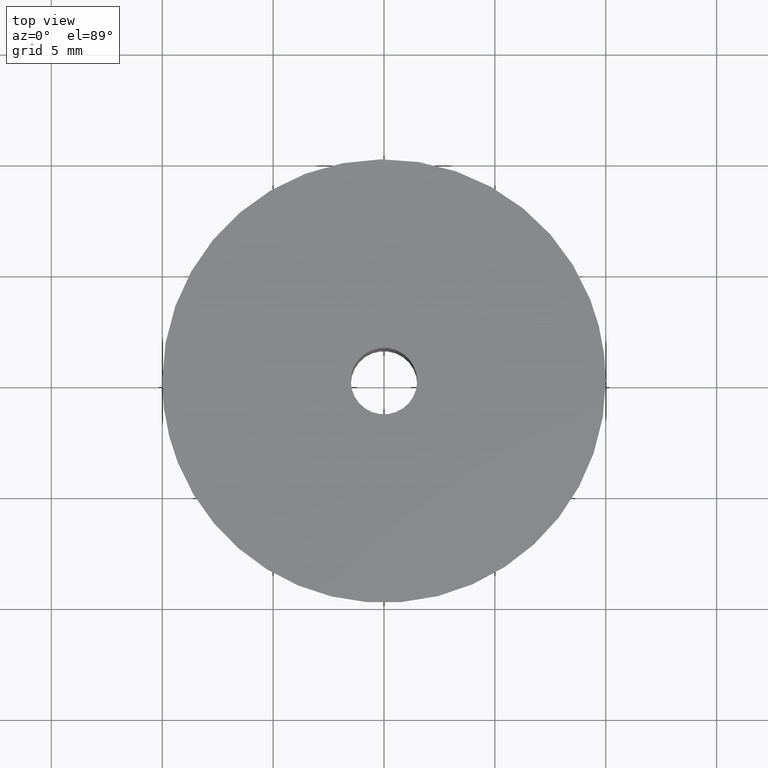
[diagram: clean part render]
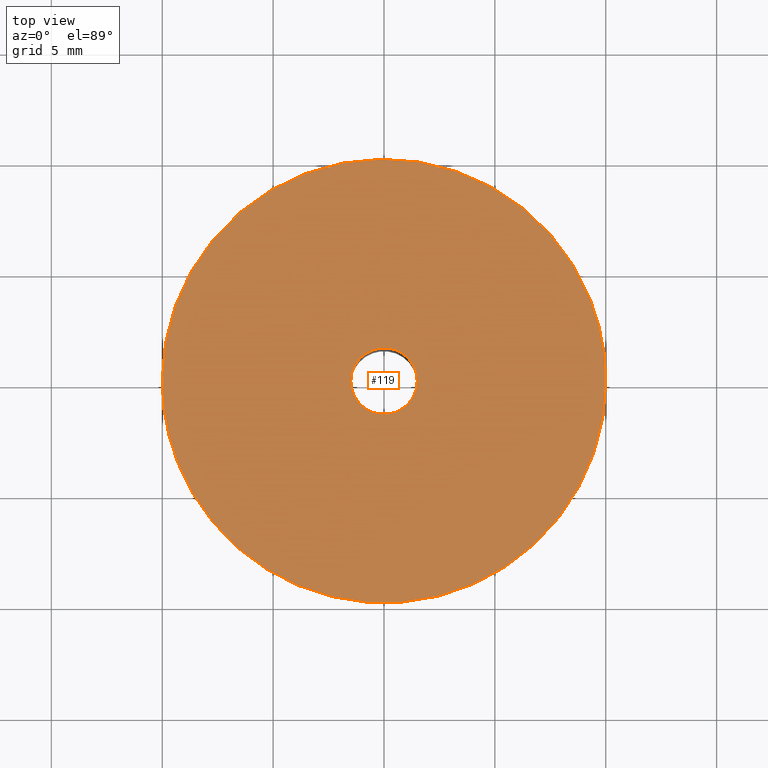
[diagram: same view with one face highlighted and labeled with its STEP entity id]
A machine part, top view. The second image highlights one B-rep face of the part: STEP entity #119.
In plain terms, the highlighted planar face has unit normal (0, 0, -1).
Its self-contained STEP definition (entity closure, byte-faithful):
#119=ADVANCED_FACE('',(#209,#210),#208,.F.);
#208=PLANE('',#413);
#209=FACE_OUTER_BOUND('',#414,.T.);
#210=FACE_BOUND('',#415,.T.);
#410=CARTESIAN_POINT('',(1.20000000000E+001,-1.26037041704E+001,1.70000000000E+001));
#411=DIRECTION('',(0.00000000000E+000,0.00000000000E+000,-1.00000000000E+000));
#412=DIRECTION('',(-1.00000000000E+000,0.00000000000E+000,0.00000000000E+000));
#413=AXIS2_PLACEMENT_3D('',#410,#411,#412);
#414=EDGE_LOOP('',(#586,#587,#588,#589,#590));
#415=EDGE_LOOP('',(#591,#592,#593));
#586=ORIENTED_EDGE('',*,*,#706,.F.);
#587=ORIENTED_EDGE('',*,*,#707,.F.);
#588=ORIENTED_EDGE('',*,*,#708,.F.);
#589=ORIENTED_EDGE('',*,*,#709,.F.);
#590=ORIENTED_EDGE('',*,*,#710,.F.);
#591=ORIENTED_EDGE('',*,*,#711,.T.);
#592=ORIENTED_EDGE('',*,*,#712,.T.);
#593=ORIENTED_EDGE('',*,*,#713,.T.);
#706=EDGE_CURVE('',#902,#903,#904,.T.);
#707=EDGE_CURVE('',#910,#902,#911,.T.);
#708=EDGE_CURVE('',#917,#910,#918,.T.);
#709=EDGE_CURVE('',#924,#917,#925,.T.);
#710=EDGE_CURVE('',#903,#924,#931,.T.);
#711=EDGE_CURVE('',#937,#938,#939,.T.);
#712=EDGE_CURVE('',#938,#945,#946,.T.);
#713=EDGE_CURVE('',#945,#937,#952,.T.);
#902=VERTEX_POINT('',#1310);
#903=VERTEX_POINT('',#1311);
#904=CIRCLE('',#1315,9.99999963700E+000);
#910=VERTEX_POINT('',#1316);
#911=CIRCLE('',#1320,9.99999937607E+000);
#917=VERTEX_POINT('',#1321);
#918=CIRCLE('',#1325,9.99999971291E+000);
#924=VERTEX_POINT('',#1326);
#925=CIRCLE('',#1330,1.00000000000E+001);
#931=CIRCLE('',#1334,1.00000000000E+001);
#937=VERTEX_POINT('',#1335);
#938=VERTEX_POINT('',#1336);
#939=CIRCLE('',#1340,1.50000000000E+000);
#945=VERTEX_POINT('',#1341);
#946=CIRCLE('',#1345,1.50000000000E+000);
#952=CIRCLE('',#1349,1.50000000000E+000);
#1310=CARTESIAN_POINT('',(-9.29864516177E+000,-3.67902037691E+000,1.69999975446E+001));
#1311=CARTESIAN_POINT('',(-1.00000000000E+001,0.00000000000E+000,1.70000000000E+001));
#1312=CARTESIAN_POINT('',(-3.62997525372E-007,9.12281297394E-007,1.69999987723E+001));
#1313=DIRECTION('',(-1.22770114281E-007,6.44002055641E-007,-1.00000000000E+000));
#1314=DIRECTION('',(9.29864513631E-001,3.67902142274E-001,1.22770163296E-007));
#1315=AXIS2_PLACEMENT_3D('',#1312,#1313,#1314);
#1316=CARTESIAN_POINT('',(7.84585198288E-001,-9.96917345939E+000,1.69999977549E+001));
#1317=CARTESIAN_POINT('',(-1.61057115200E-007,-3.07353158924E-007,1.69999976498E+001));
#1318=DIRECTION('',(1.50170098371E-008,-9.36798343997E-009,-1.00000000000E+000));
#1319=DIRECTION('',(-7.84585408298E-002,9.96917377404E-001,-1.05173181620E-008));
#1320=AXIS2_PLACEMENT_3D('',#1317,#1318,#1319);
#1321=CARTESIAN_POINT('',(1.00000000000E+001,0.00000000000E+000,1.70000000000E+001));
#1322=CARTESIAN_POINT('',(2.87085846651E-007,6.57982299757E-008,1.69999988775E+001));
#1323=DIRECTION('',(1.12252792420E-007,1.21434315144E-007,-1.00000000000E+000));
#1324=DIRECTION('',(-1.00000000000E+000,6.57982318646E-009,-1.12252791620E-007));
#1325=AXIS2_PLACEMENT_3D('',#1322,#1323,#1324);
#1326=CARTESIAN_POINT('',(9.29864345023E+000,3.67902568426E+000,1.70000000000E+001));
#1327=CARTESIAN_POINT('',(0.00000000000E+000,0.00000000000E+000,1.70000000000E+001));
#1328=DIRECTION('',(0.00000000000E+000,2.51214793389E-016,-1.00000000000E+000));
#1329=DIRECTION('',(1.00000000000E+000,-0.00000000000E+000,-0.00000000000E+000));
#1330=AXIS2_PLACEMENT_3D('',#1327,#1328,#1329);
#1331=CARTESIAN_POINT('',(0.00000000000E+000,0.00000000000E+000,1.70000000000E+001));
#1332=DIRECTION('',(0.00000000000E+000,2.51214793389E-016,-1.00000000000E+000));
#1333=DIRECTION('',(1.00000000000E+000,-0.00000000000E+000,-0.00000000000E+000));
#1334=AXIS2_PLACEMENT_3D('',#1331,#1332,#1333);
#1335=CARTESIAN_POINT('',(-1.50000000000E+000,-5.27355936697E-016,1.70000000000E+001));
#1336=CARTESIAN_POINT('',(-1.77308843490E-001,1.48948366021E+000,1.70000000000E+001));
#1337=CARTESIAN_POINT('',(1.22124532709E-015,6.66133814775E-016,1.70000000000E+001));
#1338=DIRECTION('',(-7.12319279217E-014,-1.08521435056E-014,-1.00000000000E+000));
#1339=DIRECTION('',(-1.00000000000E+000,-4.30211422042E-016,7.12319279217E-014));
#1340=AXIS2_PLACEMENT_3D('',#1337,#1338,#1339);
#1341=CARTESIAN_POINT('',(1.77050807278E-001,-1.48951435429E+000,1.70000000000E+001));
#1342=CARTESIAN_POINT('',(1.22124532709E-015,6.66133814775E-016,1.70000000000E+001));
#1343=DIRECTION('',(-7.12319279217E-014,-1.08521435056E-014,-1.00000000000E+000));
#1344=DIRECTION('',(-1.00000000000E+000,-4.30211422042E-016,7.12319279217E-014));
#1345=AXIS2_PLACEMENT_3D('',#1342,#1343,#1344);
#1346=CARTESIAN_POINT('',(1.22124532709E-015,6.66133814775E-016,1.70000000000E+001));
#1347=DIRECTION('',(-7.12319279217E-014,-1.08521435056E-014,-1.00000000000E+000));
#1348=DIRECTION('',(-1.00000000000E+000,-4.30211422042E-016,7.12319279217E-014));
#1349=AXIS2_PLACEMENT_3D('',#1346,#1347,#1348);